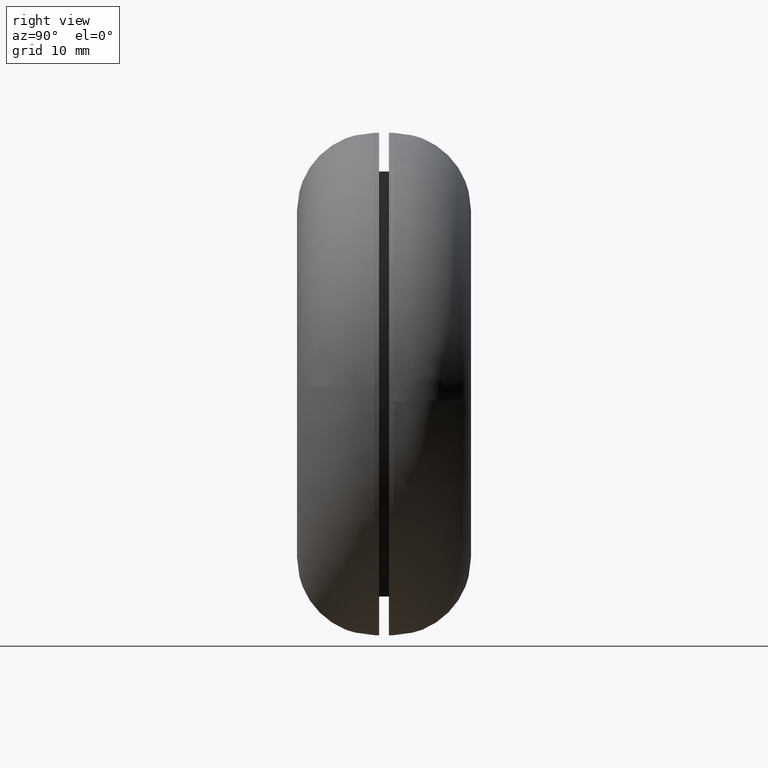
[diagram: clean part render]
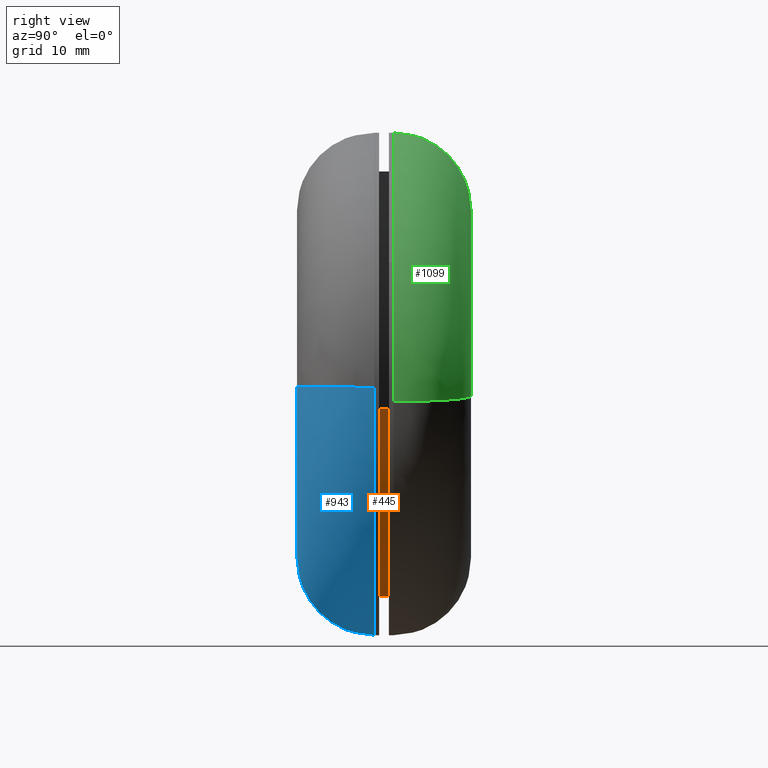
[diagram: same view with three faces highlighted in distinct colors, each labeled with its STEP entity id]
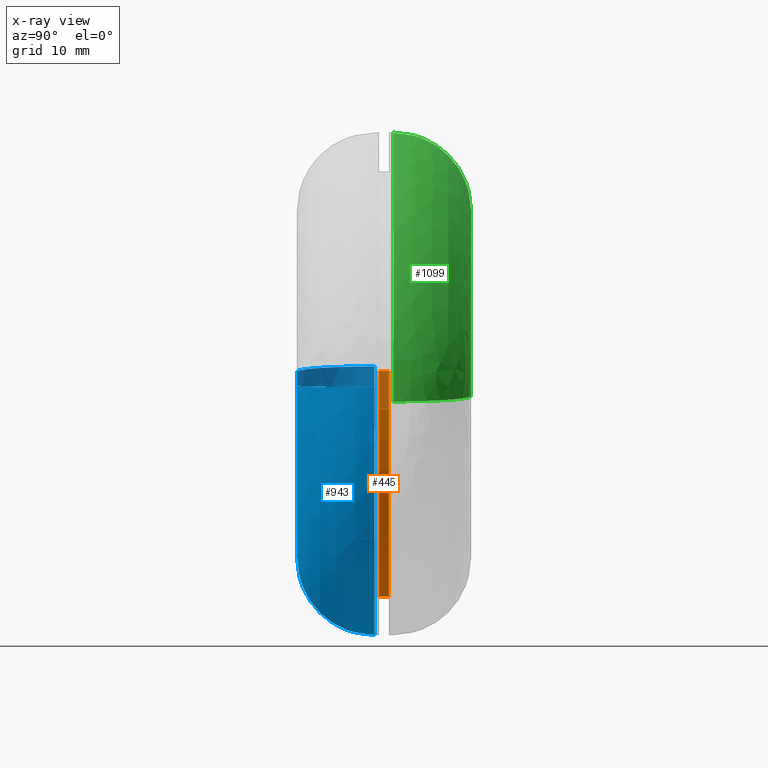
[diagram: x-ray of the same camera — body ghosted, the three highlighted faces saturated]
A machine part, right view with three faces highlighted in distinct colors.
The next image is the same camera in x-ray (body ghosted, the three faces saturated) — at least one of them is partly hidden behind the body in this view.
Their STEP definitions:

[orange] entity #445 — the highlighted face is a freeform B-spline surface patch.
#282=CARTESIAN_POINT('',(21.846210381964781,8.500000000000352,-2.596746415591637));
#283=VERTEX_POINT('',#282);
#301=CARTESIAN_POINT('',(21.846210372079330,9.500000000000000,-2.596746498757264));
#302=VERTEX_POINT('',#301);
#303=CARTESIAN_POINT('',(21.846210372079330,9.500000000000000,-2.596746498757264));
#304=CARTESIAN_POINT('',(21.846210381964781,8.500000000000352,-2.596746415591637));
#305=QUASI_UNIFORM_CURVE('',1,(#303,#304),.UNSPECIFIED.,.F.,.U.);
#306=EDGE_CURVE('',#302,#283,#305,.T.);
#325=CARTESIAN_POINT('',(-21.958966909477962,9.500000000000000,1.343045891980983));
#326=VERTEX_POINT('',#325);
#340=CARTESIAN_POINT('',(-21.958966926267419,8.500000000000497,1.343045617466656));
#341=VERTEX_POINT('',#340);
#342=CARTESIAN_POINT('',(-21.958966909477962,9.500000000000000,1.343045891980983));
#343=CARTESIAN_POINT('',(-21.958966926267419,8.500000000000497,1.343045617466656));
#344=QUASI_UNIFORM_CURVE('',1,(#342,#343),.UNSPECIFIED.,.F.,.U.);
#345=EDGE_CURVE('',#326,#341,#344,.T.);
#363=CARTESIAN_POINT('',(-21.958965565281069,9.525000000000002,1.343067869766853));
#364=CARTESIAN_POINT('',(-23.302033435047928,9.525000000000002,-20.615897695514214));
#365=CARTESIAN_POINT('',(-1.343067869766854,9.525000000000002,-21.958965565281069));
#366=CARTESIAN_POINT('',(19.393956798469024,9.525000000000002,-23.227296328115610));
#367=CARTESIAN_POINT('',(21.846209580000668,9.525000000000004,-2.596753162448688));
#368=CARTESIAN_POINT('',(-21.958965565281069,8.474374999999998,1.343067869766853));
#369=CARTESIAN_POINT('',(-23.302033435047928,8.474374999999998,-20.615897695514214));
#370=CARTESIAN_POINT('',(-1.343067869766854,8.474374999999998,-21.958965565281069));
#371=CARTESIAN_POINT('',(19.393956798469024,8.474374999999998,-23.227296328115610));
#372=CARTESIAN_POINT('',(21.846209580000668,8.474375000000000,-2.596753162448688));
#380=(BOUNDED_SURFACE()B_SPLINE_SURFACE(2,1,((#363,#368),(#364,#369),(#365,#370),(#366,#371),(#367,#372)),.UNSPECIFIED.,.F.,.F.,.U.)B_SPLINE_SURFACE_WITH_KNOTS((3,2,3),(2,2),(0.0,36.450793488832367,71.443555238111443),(0.0,1.0),.UNSPECIFIED.)GEOMETRIC_REPRESENTATION_ITEM()RATIONAL_B_SPLINE_SURFACE(((1.0,1.0),(0.707106781186548,0.707106781186548),(1.0,1.0),(0.718822509939086,0.718822509939086),(0.977505800795127,0.977505800795127)))REPRESENTATION_ITEM('')SURFACE());
#381=CARTESIAN_POINT('',(0.0,8.500000000000000,-22.0));
#382=VERTEX_POINT('',#381);
#383=CARTESIAN_POINT('',(0.0,8.500000000000000,-22.0));
#384=CARTESIAN_POINT('',(19.539845647983238,8.500000000000000,-21.999999999999996));
#385=CARTESIAN_POINT('',(21.846210381964777,8.500000000000352,-2.596746415591637));
#393=(BOUNDED_CURVE()B_SPLINE_CURVE(2,(#383,#384,#385),.UNSPECIFIED.,.F.,.U.)B_SPLINE_CURVE_WITH_KNOTS((3,3),(0.0,0.229562525709632),.UNSPECIFIED.)CURVE()GEOMETRIC_REPRESENTATION_ITEM()RATIONAL_B_SPLINE_CURVE((1.0,0.731050771703840,0.956026856490263))REPRESENTATION_ITEM(''));
#394=EDGE_CURVE('',#382,#283,#393,.T.);
#395=ORIENTED_EDGE('',*,*,#394,.F.);
#396=CARTESIAN_POINT('',(-21.958966926267419,8.500000000000497,1.343045617466657));
#397=CARTESIAN_POINT('',(-22.000000000000004,8.500000000000000,0.672149635223076));
#398=CARTESIAN_POINT('',(-22.0,8.500000000000000,-3.673819E-016));
#399=CARTESIAN_POINT('',(-22.000000000000007,8.500000000000002,-22.000000000000007));
#400=CARTESIAN_POINT('',(0.0,8.500000000000000,-22.0));
#408=(BOUNDED_CURVE()B_SPLINE_CURVE(2,(#396,#397,#398,#399,#400),.UNSPECIFIED.,.F.,.U.)B_SPLINE_CURVE_WITH_KNOTS((3,2,3),(0.739333137093714,0.750000000000000,1.0),.UNSPECIFIED.)CURVE()GEOMETRIC_REPRESENTATION_ITEM()RATIONAL_B_SPLINE_CURVE((0.976072416414064,0.987502992754944,1.0,0.707106781186548,1.0))REPRESENTATION_ITEM(''));
#409=EDGE_CURVE('',#341,#382,#408,.T.);
#410=ORIENTED_EDGE('',*,*,#409,.F.);
#411=ORIENTED_EDGE('',*,*,#345,.F.);
#412=CARTESIAN_POINT('',(0.0,9.500000000000000,-22.0));
#413=VERTEX_POINT('',#412);
#414=CARTESIAN_POINT('',(-21.958966909477965,9.500000000000000,1.343045891980983));
#415=CARTESIAN_POINT('',(-22.0,9.499999999999998,0.672149772865076));
#416=CARTESIAN_POINT('',(-22.0,9.500000000000000,-3.673819E-016));
#417=CARTESIAN_POINT('',(-22.000000000000007,9.500000000000000,-22.000000000000007));
#418=CARTESIAN_POINT('',(0.0,9.500000000000000,-22.0));
#426=(BOUNDED_CURVE()B_SPLINE_CURVE(2,(#414,#415,#416,#417,#418),.UNSPECIFIED.,.F.,.U.)B_SPLINE_CURVE_WITH_KNOTS((3,2,3),(0.739333134936665,0.750000000000000,1.0),.UNSPECIFIED.)CURVE()GEOMETRIC_REPRESENTATION_ITEM()RATIONAL_B_SPLINE_CURVE((0.976072411791089,0.987502990227804,1.0,0.707106781186548,1.0))REPRESENTATION_ITEM(''));
#427=EDGE_CURVE('',#326,#413,#426,.T.);
#428=ORIENTED_EDGE('',*,*,#427,.T.);
#429=CARTESIAN_POINT('',(0.0,9.500000000000000,-22.0));
#430=CARTESIAN_POINT('',(19.539845573073993,9.500000000000000,-22.0));
#431=CARTESIAN_POINT('',(21.846210372079330,9.500000000000000,-2.596746498757264));
#439=(BOUNDED_CURVE()B_SPLINE_CURVE(2,(#429,#430,#431),.UNSPECIFIED.,.F.,.U.)B_SPLINE_CURVE_WITH_KNOTS((3,3),(0.0,0.229562525066259),.UNSPECIFIED.)CURVE()GEOMETRIC_REPRESENTATION_ITEM()RATIONAL_B_SPLINE_CURVE((1.0,0.731050772457599,0.956026855229225))REPRESENTATION_ITEM(''));
#440=EDGE_CURVE('',#413,#302,#439,.T.);
#441=ORIENTED_EDGE('',*,*,#440,.T.);
#442=ORIENTED_EDGE('',*,*,#306,.T.);
#443=EDGE_LOOP('',(#395,#410,#411,#428,#441,#442));
#444=FACE_OUTER_BOUND('',#443,.T.);
#445=ADVANCED_FACE('',(#444),#380,.T.);

[blue] entity #943 — the highlighted face is a freeform B-spline surface patch.
#70=CARTESIAN_POINT('',(14.110946435018411,8.000000458614480,-21.837609546559520));
#71=VERTEX_POINT('',#70);
#72=CARTESIAN_POINT('',(25.997947368482730,8.000001292449309,-0.326699594867344));
#73=VERTEX_POINT('',#72);
#74=CARTESIAN_POINT('',(14.110946435018413,8.000000458614480,-21.837609546559523));
#75=CARTESIAN_POINT('',(25.822734219977335,8.000000941488212,-14.269729475274101));
#76=CARTESIAN_POINT('',(25.997947368482727,8.000001292449310,-0.326699594867343));
#84=(BOUNDED_CURVE()B_SPLINE_CURVE(2,(#74,#75,#76),.UNSPECIFIED.,.F.,.U.)B_SPLINE_CURVE_WITH_KNOTS((3,3),(0.092934715241405,0.247784413911472),.UNSPECIFIED.)CURVE()GEOMETRIC_REPRESENTATION_ITEM()RATIONAL_B_SPLINE_CURVE((0.863190116290633,0.816652432885149,0.994854567210753))REPRESENTATION_ITEM(''));
#85=EDGE_CURVE('',#71,#73,#84,.T.);
#128=CARTESIAN_POINT('',(-20.062241237377869,8.000000601774200,-16.538031216962938));
#129=VERTEX_POINT('',#128);
#135=CARTESIAN_POINT('',(-25.936707732659510,8.000001110807867,1.813061496635619));
#136=VERTEX_POINT('',#135);
#137=CARTESIAN_POINT('',(-25.936707732659517,8.000001110807867,1.813061496635619));
#138=CARTESIAN_POINT('',(-25.999999999999666,8.000001092727255,0.907635485005569));
#139=CARTESIAN_POINT('',(-25.999999999999680,8.000001073338627,-3.426702E-014));
#140=CARTESIAN_POINT('',(-25.999999999999741,8.000000873928279,-9.334952014712572));
#141=CARTESIAN_POINT('',(-20.062241237377872,8.000000601774200,-16.538031216962942));
#149=(BOUNDED_CURVE()B_SPLINE_CURVE(2,(#137,#138,#139,#140,#141),.UNSPECIFIED.,.F.,.U.)B_SPLINE_CURVE_WITH_KNOTS((3,2,3),(0.737833706721611,0.750000000000000,0.860504606936299),.UNSPECIFIED.)CURVE()GEOMETRIC_REPRESENTATION_ITEM()RATIONAL_B_SPLINE_CURVE((0.972879919083209,0.985746300802657,1.0,0.870535799922847,0.855522724180480))REPRESENTATION_ITEM(''));
#150=EDGE_CURVE('',#136,#129,#149,.T.);
#199=CARTESIAN_POINT('',(0.0,8.0,-26.0));
#200=VERTEX_POINT('',#199);
#201=CARTESIAN_POINT('',(0.0,8.0,-26.0));
#202=CARTESIAN_POINT('',(7.669375848586402,8.000000193031220,-25.999999999999986));
#203=CARTESIAN_POINT('',(14.110946435018414,8.000000458614480,-21.837609546559527));
#211=(BOUNDED_CURVE()B_SPLINE_CURVE(2,(#201,#202,#203),.UNSPECIFIED.,.F.,.U.)B_SPLINE_CURVE_WITH_KNOTS((3,3),(0.0,0.092934715241405),.UNSPECIFIED.)CURVE()GEOMETRIC_REPRESENTATION_ITEM()RATIONAL_B_SPLINE_CURVE((1.0,0.891120208453734,0.863190116290633))REPRESENTATION_ITEM(''));
#212=EDGE_CURVE('',#200,#71,#211,.T.);
#214=CARTESIAN_POINT('',(-20.062241237377872,8.000000601774200,-16.538031216962942));
#215=CARTESIAN_POINT('',(-12.262398076472840,8.000000244273899,-26.000000000000011));
#216=CARTESIAN_POINT('',(0.0,8.0,-26.0));
#224=(BOUNDED_CURVE()B_SPLINE_CURVE(2,(#214,#215,#216),.UNSPECIFIED.,.F.,.U.)B_SPLINE_CURVE_WITH_KNOTS((3,3),(0.860504606936299,1.0),.UNSPECIFIED.)CURVE()GEOMETRIC_REPRESENTATION_ITEM()RATIONAL_B_SPLINE_CURVE((0.855522724180480,0.836570981263700,1.0))REPRESENTATION_ITEM(''));
#225=EDGE_CURVE('',#129,#200,#224,.T.);
#848=CARTESIAN_POINT('',(-25.917389618975736,8.556297817926275,1.811712716281823));
#849=CARTESIAN_POINT('',(-25.969240008516667,8.556297817926273,1.069968876018898));
#850=CARTESIAN_POINT('',(-25.978583536354929,8.556297817926275,0.326473693821277));
#851=CARTESIAN_POINT('',(-26.305057230176210,8.556297817926271,-25.652109842533644));
#852=CARTESIAN_POINT('',(-0.326473693821278,8.556297817926275,-25.978583536354929));
#853=CARTESIAN_POINT('',(25.652109842533644,8.556297817926271,-26.305057230176210));
#854=CARTESIAN_POINT('',(25.978583536354929,8.556297817926275,-0.326473693821280));
#855=CARTESIAN_POINT('',(-26.555495864023708,-0.620297520827060,1.856318489297090));
#856=CARTESIAN_POINT('',(-26.608622850392511,-0.620297520827061,1.096312340072651));
#857=CARTESIAN_POINT('',(-26.618196423136983,-0.620297520827060,0.334511729515994));
#858=CARTESIAN_POINT('',(-26.952708152652978,-0.620297520827061,-26.283684693620980));
#859=CARTESIAN_POINT('',(-0.334511729515996,-0.620297520827060,-26.618196423136983));
#860=CARTESIAN_POINT('',(26.283684693620980,-0.620297520827061,-26.952708152652978));
#861=CARTESIAN_POINT('',(26.618196423136983,-0.620297520827060,-0.334511729515998));
#862=CARTESIAN_POINT('',(-17.401239262068255,0.019365094879737,1.216405159378760));
#863=CARTESIAN_POINT('',(-17.436052221532833,0.019365094879737,0.718389648351743));
#864=CARTESIAN_POINT('',(-17.442325575672889,0.019365094879737,0.219198265815929));
#865=CARTESIAN_POINT('',(-17.661523841488826,0.019365094879737,-17.223127309856956));
#866=CARTESIAN_POINT('',(-0.219198265815930,0.019365094879737,-17.442325575672889));
#867=CARTESIAN_POINT('',(17.223127309856956,0.019365094879737,-17.661523841488826));
#868=CARTESIAN_POINT('',(17.442325575672889,0.019365094879737,-0.219198265815931));
#876=(BOUNDED_SURFACE()B_SPLINE_SURFACE(2,2,((#848,#855,#862),(#849,#856,#863),(#850,#857,#864),(#851,#858,#865),(#852,#859,#866),(#853,#860,#867),(#854,#861,#868)),.UNSPECIFIED.,.F.,.F.,.U.)B_SPLINE_SURFACE_WITH_KNOTS((3,2,2,3),(3,3),(0.0,1.721843368684465,44.767968637780172,87.814093906875868),(0.0,14.578992763664880),.UNSPECIFIED.)GEOMETRIC_REPRESENTATION_ITEM()RATIONAL_B_SPLINE_SURFACE(((0.889999347940459,0.584039735443381,0.889999313642873),(0.899812919493589,0.590479645480290,0.899812884817820),(0.910479844210227,0.597479547113832,0.910479809123391),(0.643806471974723,0.422481839384458,0.643806447164583),(0.910479844210227,0.597479547113832,0.910479809123391),(0.643806471974723,0.422481839384458,0.643806447164583),(0.910479844210227,0.597479547113832,0.910479809123391)))REPRESENTATION_ITEM('')SURFACE());
#877=ORIENTED_EDGE('',*,*,#150,.T.);
#878=ORIENTED_EDGE('',*,*,#225,.T.);
#879=ORIENTED_EDGE('',*,*,#212,.T.);
#880=ORIENTED_EDGE('',*,*,#85,.T.);
#881=CARTESIAN_POINT('',(17.998578795741860,5.026045E-017,-0.226188717905229));
#882=VERTEX_POINT('',#881);
#883=CARTESIAN_POINT('',(25.997947368482734,8.000001292449309,-0.326699594867343));
#884=CARTESIAN_POINT('',(25.997948551201763,1.464610E-010,-0.326708332159748));
#885=CARTESIAN_POINT('',(17.998578795741853,5.026045E-017,-0.226188717905229));
#893=(BOUNDED_CURVE()B_SPLINE_CURVE(2,(#883,#884,#885),.UNSPECIFIED.,.F.,.U.)B_SPLINE_CURVE_WITH_KNOTS((3,3),(-1.725134808956898,-0.274865356736960),.UNSPECIFIED.)CURVE()GEOMETRIC_REPRESENTATION_ITEM()RATIONAL_B_SPLINE_CURVE((0.883342208765224,0.624617194574851,0.883342149646361))REPRESENTATION_ITEM(''));
#894=EDGE_CURVE('',#73,#882,#893,.T.);
#895=ORIENTED_EDGE('',*,*,#894,.T.);
#896=CARTESIAN_POINT('',(0.0,-2.664535E-015,-18.0));
#897=VERTEX_POINT('',#896);
#898=CARTESIAN_POINT('',(0.0,-2.664535E-015,-18.0));
#899=CARTESIAN_POINT('',(17.775214738323836,-2.664535E-015,-18.0));
#900=CARTESIAN_POINT('',(17.998578795741853,5.026045E-017,-0.226188717905229));
#908=(BOUNDED_CURVE()B_SPLINE_CURVE(2,(#898,#899,#900),.UNSPECIFIED.,.F.,.U.)B_SPLINE_CURVE_WITH_KNOTS((3,3),(0.0,0.247784295921651),.UNSPECIFIED.)CURVE()GEOMETRIC_REPRESENTATION_ITEM()RATIONAL_B_SPLINE_CURVE((1.0,0.709702639984331,0.994854295643834))REPRESENTATION_ITEM(''));
#909=EDGE_CURVE('',#897,#882,#908,.T.);
#910=ORIENTED_EDGE('',*,*,#909,.F.);
#911=CARTESIAN_POINT('',(-17.956182129380078,2.106516E-016,1.255198528417917));
#912=VERTEX_POINT('',#911);
#913=CARTESIAN_POINT('',(-17.956182129380082,2.106516E-016,1.255198528417917));
#914=CARTESIAN_POINT('',(-18.0,-2.664535E-015,0.628364085787079));
#915=CARTESIAN_POINT('',(-18.0,-2.664535E-015,-3.673819E-016));
#916=CARTESIAN_POINT('',(-18.000000000000007,-2.664535E-015,-18.000000000000007));
#917=CARTESIAN_POINT('',(0.0,-2.664535E-015,-18.0));
#925=(BOUNDED_CURVE()B_SPLINE_CURVE(2,(#913,#914,#915,#916,#917),.UNSPECIFIED.,.F.,.U.)B_SPLINE_CURVE_WITH_KNOTS((3,2,3),(0.737833686534328,0.750000000000000,1.0),.UNSPECIFIED.)CURVE()GEOMETRIC_REPRESENTATION_ITEM()RATIONAL_B_SPLINE_CURVE((0.972879876385360,0.985746277151783,1.0,0.707106781186547,1.0))REPRESENTATION_ITEM(''));
#926=EDGE_CURVE('',#912,#897,#925,.T.);
#927=ORIENTED_EDGE('',*,*,#926,.F.);
#928=CARTESIAN_POINT('',(-25.936707732659514,8.000001110807867,1.813061496635619));
#929=CARTESIAN_POINT('',(-25.936708734230201,5.117403E-010,1.813063096270947));
#930=CARTESIAN_POINT('',(-17.956182129380078,2.106516E-016,1.255198528417917));
#938=(BOUNDED_CURVE()B_SPLINE_CURVE(2,(#928,#929,#930),.UNSPECIFIED.,.F.,.U.)B_SPLINE_CURVE_WITH_KNOTS((3,3),(-1.725134785672842,-0.274865356783784),.UNSPECIFIED.)CURVE()GEOMETRIC_REPRESENTATION_ITEM()RATIONAL_B_SPLINE_CURVE((0.863472125034408,0.610566935041849,0.863472075349824))REPRESENTATION_ITEM(''));
#939=EDGE_CURVE('',#136,#912,#938,.T.);
#940=ORIENTED_EDGE('',*,*,#939,.F.);
#941=EDGE_LOOP('',(#877,#878,#879,#880,#895,#910,#927,#940));
#942=FACE_OUTER_BOUND('',#941,.T.);
#943=ADVANCED_FACE('',(#942),#876,.T.);

[green] entity #1099 — the highlighted face is a freeform B-spline surface patch.
#464=CARTESIAN_POINT('',(22.748609441721719,9.999995030012045,12.589708831735640));
#465=VERTEX_POINT('',#464);
#466=CARTESIAN_POINT('',(0.0,10.0,26.0));
#467=VERTEX_POINT('',#466);
#468=CARTESIAN_POINT('',(22.748609441721715,9.999995030012045,12.589708831735633));
#469=CARTESIAN_POINT('',(15.326983887434320,9.999997948372934,26.000000000000131));
#470=CARTESIAN_POINT('',(0.0,10.0,26.0));
#478=(BOUNDED_CURVE()B_SPLINE_CURVE(2,(#468,#469,#470),.UNSPECIFIED.,.F.,.U.)B_SPLINE_CURVE_WITH_KNOTS((3,3),(0.332484260513151,0.500000000000000),.UNSPECIFIED.)CURVE()GEOMETRIC_REPRESENTATION_ITEM()RATIONAL_B_SPLINE_CURVE((0.870495160132561,0.803743103439125,1.0))REPRESENTATION_ITEM(''));
#479=EDGE_CURVE('',#465,#467,#478,.T.);
#481=CARTESIAN_POINT('',(-17.565344340139308,9.999996405808178,19.169211726417540));
#482=VERTEX_POINT('',#481);
#483=CARTESIAN_POINT('',(0.0,10.0,26.0));
#484=CARTESIAN_POINT('',(-10.110846202271471,9.999998505180292,25.999999999999964));
#485=CARTESIAN_POINT('',(-17.565344340139305,9.999996405808176,19.169211726417540));
#493=(BOUNDED_CURVE()B_SPLINE_CURVE(2,(#483,#484,#485),.UNSPECIFIED.,.F.,.U.)B_SPLINE_CURVE_WITH_KNOTS((3,3),(0.500000000000000,0.618415200753254),.UNSPECIFIED.)CURVE()GEOMETRIC_REPRESENTATION_ITEM()RATIONAL_B_SPLINE_CURVE((1.0,0.861267962779753,0.853959781866254))REPRESENTATION_ITEM(''));
#494=EDGE_CURVE('',#467,#482,#493,.T.);
#563=CARTESIAN_POINT('',(25.936707730010639,9.999992535873165,-1.813061534431493));
#564=VERTEX_POINT('',#563);
#565=CARTESIAN_POINT('',(25.936707730010635,9.999992535873165,-1.813061534431493));
#566=CARTESIAN_POINT('',(25.999999999992990,9.999992657366709,-0.907635503972486));
#567=CARTESIAN_POINT('',(25.999999999993118,9.999992787649525,4.789478E-013));
#568=CARTESIAN_POINT('',(25.999999999994039,9.999993751484029,6.714702908939736));
#569=CARTESIAN_POINT('',(22.748609441721715,9.999995030012045,12.589708831735633));
#577=(BOUNDED_CURVE()B_SPLINE_CURVE(2,(#565,#566,#567,#568,#569),.UNSPECIFIED.,.F.,.U.)B_SPLINE_CURVE_WITH_KNOTS((3,2,3),(0.237833706470990,0.250000000000000,0.332484260513151),.UNSPECIFIED.)CURVE()GEOMETRIC_REPRESENTATION_ITEM()RATIONAL_B_SPLINE_CURVE((0.972879918553122,0.985746300509035,1.0,0.903363677747423,0.870495160132561))REPRESENTATION_ITEM(''));
#578=EDGE_CURVE('',#564,#465,#577,.T.);
#614=CARTESIAN_POINT('',(-25.997947368348360,9.999992408155629,0.326699605003920));
#615=VERTEX_POINT('',#614);
#616=CARTESIAN_POINT('',(-17.565344340139305,9.999996405808176,19.169211726417540));
#617=CARTESIAN_POINT('',(-25.856639376555272,9.999994070774763,11.571640453322299));
#618=CARTESIAN_POINT('',(-25.997947368348367,9.999992408155629,0.326699605003920));
#626=(BOUNDED_CURVE()B_SPLINE_CURVE(2,(#616,#617,#618),.UNSPECIFIED.,.F.,.U.)B_SPLINE_CURVE_WITH_KNOTS((3,3),(0.618415200753254,0.747784413842901),.UNSPECIFIED.)CURVE()GEOMETRIC_REPRESENTATION_ITEM()RATIONAL_B_SPLINE_CURVE((0.853959781866254,0.845975556801549,0.994854567052929))REPRESENTATION_ITEM(''));
#627=EDGE_CURVE('',#482,#615,#626,.T.);
#1004=CARTESIAN_POINT('',(17.401239248506641,17.980634904172639,-1.216405158430743));
#1005=CARTESIAN_POINT('',(17.436052207944090,17.980634904172625,-0.718389647791853));
#1006=CARTESIAN_POINT('',(17.442325562079233,17.980634904172629,-0.219198265645084));
#1007=CARTESIAN_POINT('',(17.661523827724320,17.980634904172632,17.223127296434146));
#1008=CARTESIAN_POINT('',(0.219198265645085,17.980634904172629,17.442325562079233));
#1009=CARTESIAN_POINT('',(-17.223127296434146,17.980634904172632,17.661523827724320));
#1010=CARTESIAN_POINT('',(-17.442325562079233,17.980634904172629,0.219198265645086));
#1011=CARTESIAN_POINT('',(26.555504101533984,18.620298112139096,-1.856319065126748));
#1012=CARTESIAN_POINT('',(26.608631104382763,18.620298112139100,-1.096312680148532));
#1013=CARTESIAN_POINT('',(26.618204680096959,18.620298112139096,-0.334511833281455));
#1014=CARTESIAN_POINT('',(26.952716513378441,18.620298112139100,26.283692846815516));
#1015=CARTESIAN_POINT('',(0.334511833281457,18.620298112139096,26.618204680096959));
#1016=CARTESIAN_POINT('',(-26.283692846815516,18.620298112139100,26.952716513378441));
#1017=CARTESIAN_POINT('',(-26.618204680096959,18.620298112139096,0.334511833281459));
#1018=CARTESIAN_POINT('',(25.917389124498865,9.443695071055574,-1.811712681716207));
#1019=CARTESIAN_POINT('',(25.969239513050546,9.443695071055574,-1.069968855604983));
#1020=CARTESIAN_POINT('',(25.978583040710532,9.443695071055572,-0.326473687592478));
#1021=CARTESIAN_POINT('',(26.305056728303022,9.443695071055574,25.652109353118060));
#1022=CARTESIAN_POINT('',(0.326473687592479,9.443695071055572,25.978583040710532));
#1023=CARTESIAN_POINT('',(-25.652109353118060,9.443695071055574,26.305056728303022));
#1024=CARTESIAN_POINT('',(-25.978583040710532,9.443695071055572,0.326473687592481));
#1032=(BOUNDED_SURFACE()B_SPLINE_SURFACE(2,2,((#1004,#1011,#1018),(#1005,#1012,#1019),(#1006,#1013,#1020),(#1007,#1014,#1021),(#1008,#1015,#1022),(#1009,#1016,#1023),(#1010,#1017,#1024)),.UNSPECIFIED.,.F.,.F.,.U.)B_SPLINE_SURFACE_WITH_KNOTS((3,2,2,3),(3,3),(0.0,1.721843335833481,44.767967783653823,87.814092231474149),(0.0,14.579001387978600),.UNSPECIFIED.)GEOMETRIC_REPRESENTATION_ITEM()RATIONAL_B_SPLINE_SURFACE(((0.895729751734341,0.587800009152623,0.895730149178872),(0.905606509544617,0.594281381821151,0.905606911371567),(0.916342114969850,0.601326351528802,0.916342521560299),(0.647951723382004,0.425201940872182,0.647952010884867),(0.916342114969850,0.601326351528802,0.916342521560299),(0.647951723382004,0.425201940872182,0.647952010884867),(0.916342114969850,0.601326351528802,0.916342521560299)))REPRESENTATION_ITEM('')SURFACE());
#1033=ORIENTED_EDGE('',*,*,#479,.F.);
#1034=ORIENTED_EDGE('',*,*,#578,.F.);
#1035=CARTESIAN_POINT('',(17.956182129285530,18.0,-1.255198528403280));
#1036=VERTEX_POINT('',#1035);
#1037=CARTESIAN_POINT('',(17.956182129285537,18.000000000000007,-1.255198528403281));
#1038=CARTESIAN_POINT('',(25.936715070811609,17.999999999678941,-1.813063558206155));
#1039=CARTESIAN_POINT('',(25.936707730010635,9.999992535873165,-1.813061534431494));
#1047=(BOUNDED_CURVE()B_SPLINE_CURVE(2,(#1037,#1038,#1039),.UNSPECIFIED.,.F.,.U.)B_SPLINE_CURVE_WITH_KNOTS((3,3),(-1.734750791616700,-0.265248238849736),.UNSPECIFIED.)CURVE()GEOMETRIC_REPRESENTATION_ITEM()RATIONAL_B_SPLINE_CURVE((0.869031711860814,0.614498048613945,0.869032047728338))REPRESENTATION_ITEM(''));
#1048=EDGE_CURVE('',#1036,#564,#1047,.T.);
#1049=ORIENTED_EDGE('',*,*,#1048,.F.);
#1050=CARTESIAN_POINT('',(0.0,18.0,18.0));
#1051=VERTEX_POINT('',#1050);
#1052=CARTESIAN_POINT('',(17.956182129285533,17.999999999999996,-1.255198528403280));
#1053=CARTESIAN_POINT('',(18.000000000000007,18.000000000000007,-0.628364085779069));
#1054=CARTESIAN_POINT('',(18.0,18.0,-3.673819E-016));
#1055=CARTESIAN_POINT('',(18.000000000000007,18.000000000000007,18.000000000000007));
#1056=CARTESIAN_POINT('',(0.0,18.0,18.0));
#1064=(BOUNDED_CURVE()B_SPLINE_CURVE(2,(#1052,#1053,#1054,#1055,#1056),.UNSPECIFIED.,.F.,.U.)B_SPLINE_CURVE_WITH_KNOTS((3,2,3),(0.237833686534481,0.250000000000000,0.500000000000000),.UNSPECIFIED.)CURVE()GEOMETRIC_REPRESENTATION_ITEM()RATIONAL_B_SPLINE_CURVE((0.972879876385684,0.985746277151962,1.0,0.707106781186547,1.0))REPRESENTATION_ITEM(''));
#1065=EDGE_CURVE('',#1036,#1051,#1064,.T.);
#1066=ORIENTED_EDGE('',*,*,#1065,.T.);
#1067=CARTESIAN_POINT('',(-17.998578795695579,18.0,0.226188717903136));
#1068=VERTEX_POINT('',#1067);
#1069=CARTESIAN_POINT('',(0.0,18.0,18.0));
#1070=CARTESIAN_POINT('',(-17.775214738326817,18.000000000000004,18.000000000000004));
#1071=CARTESIAN_POINT('',(-17.998578795695582,18.0,0.226188717903136));
#1079=(BOUNDED_CURVE()B_SPLINE_CURVE(2,(#1069,#1070,#1071),.UNSPECIFIED.,.F.,.U.)B_SPLINE_CURVE_WITH_KNOTS((3,3),(0.500000000000000,0.747784295921680),.UNSPECIFIED.)CURVE()GEOMETRIC_REPRESENTATION_ITEM()RATIONAL_B_SPLINE_CURVE((1.0,0.709702639984296,0.994854295643902))REPRESENTATION_ITEM(''));
#1080=EDGE_CURVE('',#1051,#1068,#1079,.T.);
#1081=ORIENTED_EDGE('',*,*,#1080,.T.);
#1082=CARTESIAN_POINT('',(-17.998578795695575,17.999999999999993,0.226188717903136));
#1083=CARTESIAN_POINT('',(-25.997954850060669,17.999999999946148,0.326708416386084));
#1084=CARTESIAN_POINT('',(-25.997947368348360,9.999992408155629,0.326699605003920));
#1092=(BOUNDED_CURVE()B_SPLINE_CURVE(2,(#1082,#1083,#1084),.UNSPECIFIED.,.F.,.U.)B_SPLINE_CURVE_WITH_KNOTS((3,3),(-1.734750791651407,-0.265248222260906),.UNSPECIFIED.)CURVE()GEOMETRIC_REPRESENTATION_ITEM()RATIONAL_B_SPLINE_CURVE((0.889029723573963,0.628638771488335,0.889030073037093))REPRESENTATION_ITEM(''));
#1093=EDGE_CURVE('',#1068,#615,#1092,.T.);
#1094=ORIENTED_EDGE('',*,*,#1093,.T.);
#1095=ORIENTED_EDGE('',*,*,#627,.F.);
#1096=ORIENTED_EDGE('',*,*,#494,.F.);
#1097=EDGE_LOOP('',(#1033,#1034,#1049,#1066,#1081,#1094,#1095,#1096));
#1098=FACE_OUTER_BOUND('',#1097,.T.);
#1099=ADVANCED_FACE('',(#1098),#1032,.T.);